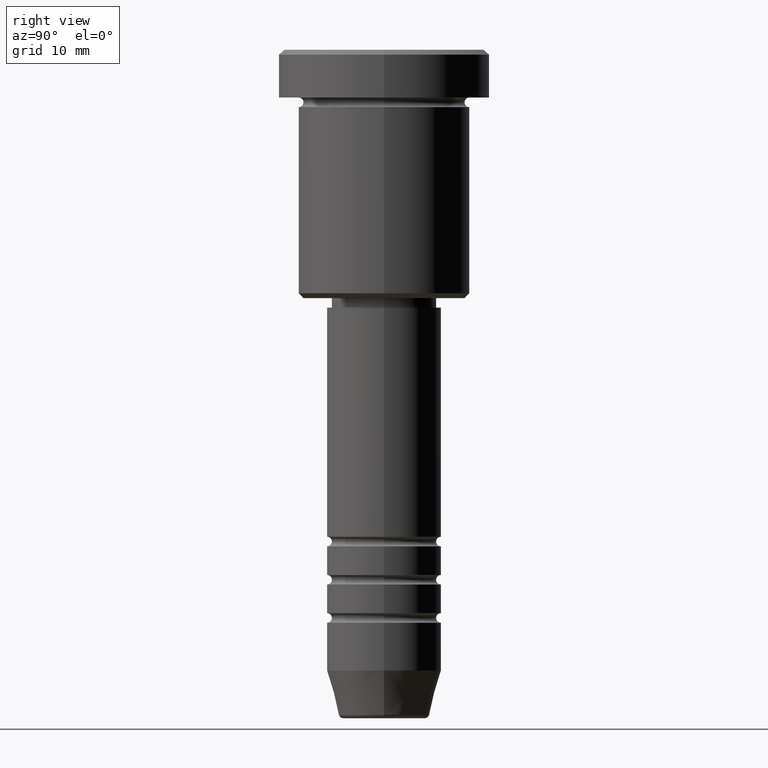
[diagram: clean part render]
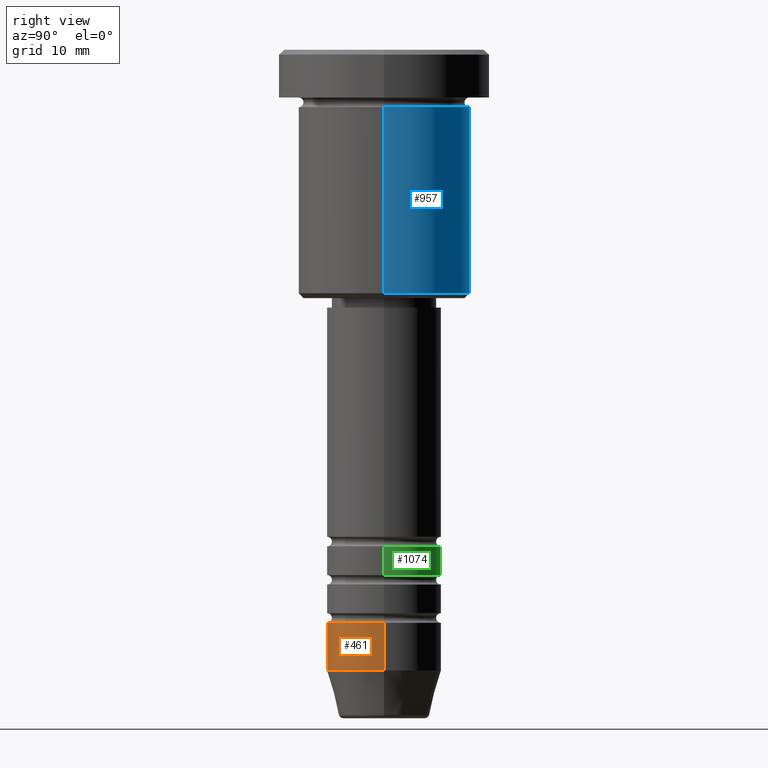
[diagram: same view with three faces highlighted in distinct colors, each labeled with its STEP entity id]
A machine part, right view with three faces highlighted in distinct colors.
Their STEP definitions:

[orange] entity #461 — the highlighted cylindrical surface (partial cylindrical patch) has radius 6 mm, axis along (-0, -0, 1).
#16 = CARTESIAN_POINT ( 'NONE',  ( -6.000000000000000000, 7.347880794884119736E-16, 0.000000000000000000 ) ) ;
#21 = VECTOR ( 'NONE', #574, 1000.000000000000000 ) ;
#32 = CARTESIAN_POINT ( 'NONE',  ( 6.000000000000000000, 0.000000000000000000, 0.000000000000000000 ) ) ;
#36 = VERTEX_POINT ( 'NONE', #245 ) ;
#41 = CYLINDRICAL_SURFACE ( 'NONE', #403, 6.000000000000000000 ) ;
#136 = EDGE_CURVE ( 'NONE', #36, #377, #905, .T. ) ;
#225 = ORIENTED_EDGE ( 'NONE', *, *, #758, .T. ) ;
#240 = DIRECTION ( 'NONE',  ( 1.000000000000000000, 0.000000000000000000, 0.000000000000000000 ) ) ;
#245 = CARTESIAN_POINT ( 'NONE',  ( -6.000000000000000000, 7.347880794884119736E-16, -65.00000000000000000 ) ) ;
#247 = CARTESIAN_POINT ( 'NONE',  ( 5.999999999999999112, 0.000000000000000000, -60.00000000000000711 ) ) ;
#288 = EDGE_LOOP ( 'NONE', ( #921, #576, #225, #1178 ) ) ;
#377 = VERTEX_POINT ( 'NONE', #850 ) ;
#403 = AXIS2_PLACEMENT_3D ( 'NONE', #984, #882, #411 ) ;
#405 = VECTOR ( 'NONE', #744, 1000.000000000000000 ) ;
#409 = CARTESIAN_POINT ( 'NONE',  ( 0.000000000000000000, 0.000000000000000000, -60.00000000000000711 ) ) ;
#411 = DIRECTION ( 'NONE',  ( 1.000000000000000000, 0.000000000000000000, 0.000000000000000000 ) ) ;
#437 = DIRECTION ( 'NONE',  ( -0.000000000000000000, -0.000000000000000000, 1.000000000000000000 ) ) ;
#461 = ADVANCED_FACE ( 'NONE', ( #1144 ), #41, .T. ) ;
#476 = LINE ( 'NONE', #16, #405 ) ;
#574 = DIRECTION ( 'NONE',  ( -0.000000000000000000, -0.000000000000000000, 1.000000000000000000 ) ) ;
#576 = ORIENTED_EDGE ( 'NONE', *, *, #136, .T. ) ;
#672 = EDGE_CURVE ( 'NONE', #822, #734, #820, .T. ) ;
#734 = VERTEX_POINT ( 'NONE', #247 ) ;
#744 = DIRECTION ( 'NONE',  ( -0.000000000000000000, -0.000000000000000000, 1.000000000000000000 ) ) ;
#758 = EDGE_CURVE ( 'NONE', #377, #734, #951, .T. ) ;
#775 = DIRECTION ( 'NONE',  ( -0.000000000000000000, -0.000000000000000000, 1.000000000000000000 ) ) ;
#802 = DIRECTION ( 'NONE',  ( 1.000000000000000000, 0.000000000000000000, 0.000000000000000000 ) ) ;
#820 = CIRCLE ( 'NONE', #1050, 5.999999999999999112 ) ;
#822 = VERTEX_POINT ( 'NONE', #1114 ) ;
#850 = CARTESIAN_POINT ( 'NONE',  ( 6.000000000000000000, 0.000000000000000000, -65.00000000000000000 ) ) ;
#877 = EDGE_CURVE ( 'NONE', #36, #822, #476, .T. ) ;
#882 = DIRECTION ( 'NONE',  ( -0.000000000000000000, -0.000000000000000000, 1.000000000000000000 ) ) ;
#891 = CARTESIAN_POINT ( 'NONE',  ( 0.000000000000000000, 0.000000000000000000, -65.00000000000000000 ) ) ;
#905 = CIRCLE ( 'NONE', #1155, 6.000000000000000000 ) ;
#921 = ORIENTED_EDGE ( 'NONE', *, *, #877, .F. ) ;
#951 = LINE ( 'NONE', #32, #21 ) ;
#984 = CARTESIAN_POINT ( 'NONE',  ( 0.000000000000000000, 0.000000000000000000, 0.000000000000000000 ) ) ;
#1050 = AXIS2_PLACEMENT_3D ( 'NONE', #409, #775, #240 ) ;
#1114 = CARTESIAN_POINT ( 'NONE',  ( -5.999999999999999112, 7.347880794884118750E-16, -60.00000000000000711 ) ) ;
#1144 = FACE_OUTER_BOUND ( 'NONE', #288, .T. ) ;
#1155 = AXIS2_PLACEMENT_3D ( 'NONE', #891, #437, #802 ) ;
#1178 = ORIENTED_EDGE ( 'NONE', *, *, #672, .F. ) ;

[blue] entity #957 — the highlighted cylindrical surface (partial cylindrical patch) has radius 9 mm, axis along (-0, -0, 1).
#17 = EDGE_CURVE ( 'NONE', #235, #270, #929, .T. ) ;
#54 = DIRECTION ( 'NONE',  ( -0.000000000000000000, -0.000000000000000000, 1.000000000000000000 ) ) ;
#56 = VECTOR ( 'NONE', #610, 1000.000000000000000 ) ;
#67 = CIRCLE ( 'NONE', #531, 9.000000000000000000 ) ;
#95 = EDGE_CURVE ( 'NONE', #163, #1103, #67, .T. ) ;
#105 = DIRECTION ( 'NONE',  ( -0.000000000000000000, -0.000000000000000000, 1.000000000000000000 ) ) ;
#140 = CARTESIAN_POINT ( 'NONE',  ( 0.000000000000000000, 0.000000000000000000, -6.000000000000000000 ) ) ;
#163 = VERTEX_POINT ( 'NONE', #363 ) ;
#171 = ORIENTED_EDGE ( 'NONE', *, *, #95, .F. ) ;
#235 = VERTEX_POINT ( 'NONE', #908 ) ;
#238 = FACE_OUTER_BOUND ( 'NONE', #1123, .T. ) ;
#258 = CARTESIAN_POINT ( 'NONE',  ( 0.000000000000000000, 0.000000000000000000, -25.50000000000000000 ) ) ;
#270 = VERTEX_POINT ( 'NONE', #592 ) ;
#271 = AXIS2_PLACEMENT_3D ( 'NONE', #964, #54, #866 ) ;
#363 = CARTESIAN_POINT ( 'NONE',  ( 9.000000000000000000, 0.000000000000000000, -6.000000000000000000 ) ) ;
#365 = EDGE_CURVE ( 'NONE', #235, #163, #496, .T. ) ;
#389 = CARTESIAN_POINT ( 'NONE',  ( 9.000000000000000000, 0.000000000000000000, 0.000000000000000000 ) ) ;
#417 = AXIS2_PLACEMENT_3D ( 'NONE', #258, #883, #1158 ) ;
#428 = LINE ( 'NONE', #1137, #56 ) ;
#444 = ORIENTED_EDGE ( 'NONE', *, *, #365, .F. ) ;
#496 = LINE ( 'NONE', #389, #630 ) ;
#511 = DIRECTION ( 'NONE',  ( 1.000000000000000000, 0.000000000000000000, 0.000000000000000000 ) ) ;
#531 = AXIS2_PLACEMENT_3D ( 'NONE', #140, #712, #511 ) ;
#545 = CARTESIAN_POINT ( 'NONE',  ( -9.000000000000000000, 1.102182119232617714E-15, -6.000000000000000000 ) ) ;
#592 = CARTESIAN_POINT ( 'NONE',  ( -9.000000000000000000, 1.102182119232617714E-15, -25.50000000000000000 ) ) ;
#610 = DIRECTION ( 'NONE',  ( -0.000000000000000000, -0.000000000000000000, 1.000000000000000000 ) ) ;
#630 = VECTOR ( 'NONE', #105, 1000.000000000000000 ) ;
#688 = EDGE_CURVE ( 'NONE', #270, #1103, #428, .T. ) ;
#712 = DIRECTION ( 'NONE',  ( -0.000000000000000000, -0.000000000000000000, 1.000000000000000000 ) ) ;
#857 = CYLINDRICAL_SURFACE ( 'NONE', #271, 9.000000000000000000 ) ;
#866 = DIRECTION ( 'NONE',  ( 1.000000000000000000, 0.000000000000000000, 0.000000000000000000 ) ) ;
#883 = DIRECTION ( 'NONE',  ( -0.000000000000000000, -0.000000000000000000, 1.000000000000000000 ) ) ;
#908 = CARTESIAN_POINT ( 'NONE',  ( 9.000000000000000000, 0.000000000000000000, -25.50000000000000000 ) ) ;
#929 = CIRCLE ( 'NONE', #417, 9.000000000000000000 ) ;
#939 = ORIENTED_EDGE ( 'NONE', *, *, #688, .T. ) ;
#957 = ADVANCED_FACE ( 'NONE', ( #238 ), #857, .T. ) ;
#964 = CARTESIAN_POINT ( 'NONE',  ( 0.000000000000000000, 0.000000000000000000, 0.000000000000000000 ) ) ;
#1078 = ORIENTED_EDGE ( 'NONE', *, *, #17, .T. ) ;
#1103 = VERTEX_POINT ( 'NONE', #545 ) ;
#1123 = EDGE_LOOP ( 'NONE', ( #1078, #939, #171, #444 ) ) ;
#1137 = CARTESIAN_POINT ( 'NONE',  ( -9.000000000000000000, 1.102182119232617714E-15, 0.000000000000000000 ) ) ;
#1158 = DIRECTION ( 'NONE',  ( -1.000000000000000000, 0.000000000000000000, 0.000000000000000000 ) ) ;

[green] entity #1074 — the highlighted cylindrical surface (partial cylindrical patch) has radius 6 mm, axis along (-0, -0, 1).
#37 = LINE ( 'NONE', #695, #330 ) ;
#49 = DIRECTION ( 'NONE',  ( 1.000000000000000000, 0.000000000000000000, 0.000000000000000000 ) ) ;
#58 = CIRCLE ( 'NONE', #730, 5.999999999999999112 ) ;
#69 = EDGE_CURVE ( 'NONE', #1172, #559, #201, .T. ) ;
#135 = VECTOR ( 'NONE', #153, 1000.000000000000000 ) ;
#153 = DIRECTION ( 'NONE',  ( -0.000000000000000000, -0.000000000000000000, 1.000000000000000000 ) ) ;
#168 = ORIENTED_EDGE ( 'NONE', *, *, #69, .T. ) ;
#201 = CIRCLE ( 'NONE', #392, 6.000000000000001776 ) ;
#224 = CARTESIAN_POINT ( 'NONE',  ( 6.000000000000000000, 0.000000000000000000, 0.000000000000000000 ) ) ;
#323 = DIRECTION ( 'NONE',  ( 1.000000000000000000, 0.000000000000000000, 0.000000000000000000 ) ) ;
#330 = VECTOR ( 'NONE', #1047, 1000.000000000000000 ) ;
#392 = AXIS2_PLACEMENT_3D ( 'NONE', #1170, #1145, #49 ) ;
#438 = DIRECTION ( 'NONE',  ( 1.000000000000000000, 0.000000000000000000, 0.000000000000000000 ) ) ;
#443 = FACE_OUTER_BOUND ( 'NONE', #849, .T. ) ;
#528 = CARTESIAN_POINT ( 'NONE',  ( -5.999999999999999112, 7.347880794884118750E-16, -52.00000000000000000 ) ) ;
#538 = CYLINDRICAL_SURFACE ( 'NONE', #962, 6.000000000000000000 ) ;
#559 = VERTEX_POINT ( 'NONE', #1151 ) ;
#673 = ORIENTED_EDGE ( 'NONE', *, *, #1005, .T. ) ;
#695 = CARTESIAN_POINT ( 'NONE',  ( -6.000000000000000000, 7.347880794884119736E-16, 0.000000000000000000 ) ) ;
#730 = AXIS2_PLACEMENT_3D ( 'NONE', #1042, #1142, #323 ) ;
#804 = VERTEX_POINT ( 'NONE', #847 ) ;
#807 = DIRECTION ( 'NONE',  ( -0.000000000000000000, -0.000000000000000000, 1.000000000000000000 ) ) ;
#819 = CARTESIAN_POINT ( 'NONE',  ( 6.000000000000001776, 0.000000000000000000, -54.99999999999999289 ) ) ;
#847 = CARTESIAN_POINT ( 'NONE',  ( 5.999999999999999112, 0.000000000000000000, -52.00000000000000000 ) ) ;
#849 = EDGE_LOOP ( 'NONE', ( #168, #673, #1070, #888 ) ) ;
#888 = ORIENTED_EDGE ( 'NONE', *, *, #950, .F. ) ;
#900 = CARTESIAN_POINT ( 'NONE',  ( 0.000000000000000000, 0.000000000000000000, 0.000000000000000000 ) ) ;
#950 = EDGE_CURVE ( 'NONE', #1172, #804, #975, .T. ) ;
#962 = AXIS2_PLACEMENT_3D ( 'NONE', #900, #807, #438 ) ;
#975 = LINE ( 'NONE', #224, #135 ) ;
#1005 = EDGE_CURVE ( 'NONE', #559, #1179, #37, .T. ) ;
#1040 = EDGE_CURVE ( 'NONE', #804, #1179, #58, .T. ) ;
#1042 = CARTESIAN_POINT ( 'NONE',  ( 0.000000000000000000, 0.000000000000000000, -52.00000000000000000 ) ) ;
#1047 = DIRECTION ( 'NONE',  ( -0.000000000000000000, -0.000000000000000000, 1.000000000000000000 ) ) ;
#1070 = ORIENTED_EDGE ( 'NONE', *, *, #1040, .F. ) ;
#1074 = ADVANCED_FACE ( 'NONE', ( #443 ), #538, .T. ) ;
#1142 = DIRECTION ( 'NONE',  ( -0.000000000000000000, -0.000000000000000000, 1.000000000000000000 ) ) ;
#1145 = DIRECTION ( 'NONE',  ( -0.000000000000000000, -0.000000000000000000, 1.000000000000000000 ) ) ;
#1151 = CARTESIAN_POINT ( 'NONE',  ( -6.000000000000001776, 7.347880794884121708E-16, -54.99999999999999289 ) ) ;
#1170 = CARTESIAN_POINT ( 'NONE',  ( 0.000000000000000000, 0.000000000000000000, -54.99999999999999289 ) ) ;
#1172 = VERTEX_POINT ( 'NONE', #819 ) ;
#1179 = VERTEX_POINT ( 'NONE', #528 ) ;